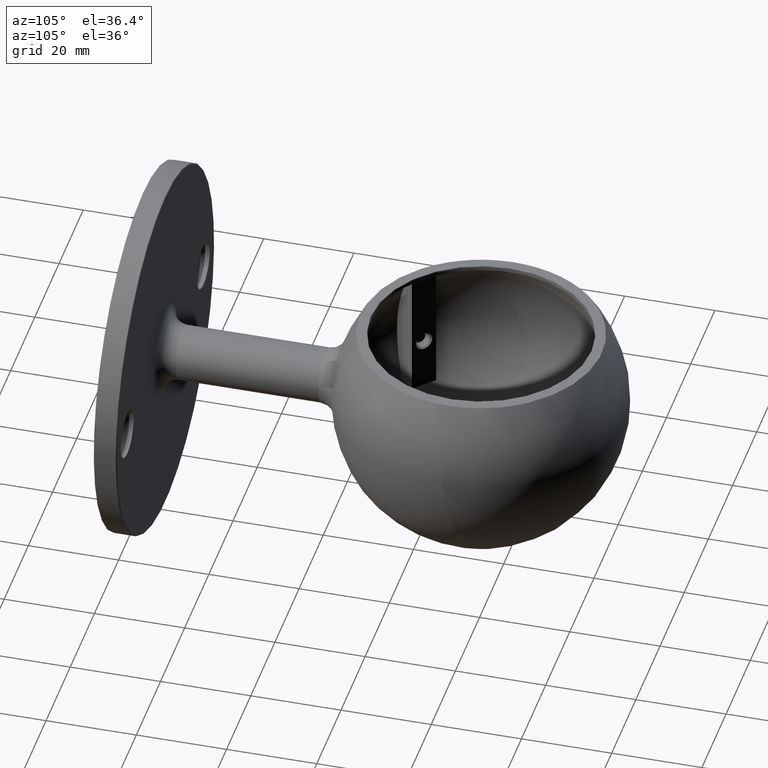
[diagram: clean part render]
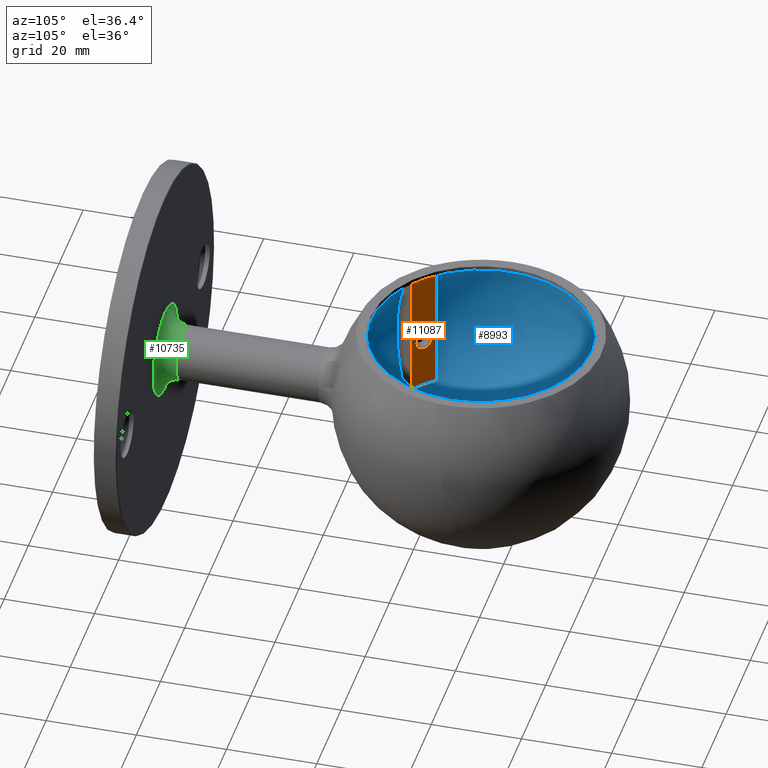
[diagram: same view with three faces highlighted in distinct colors, each labeled with its STEP entity id]
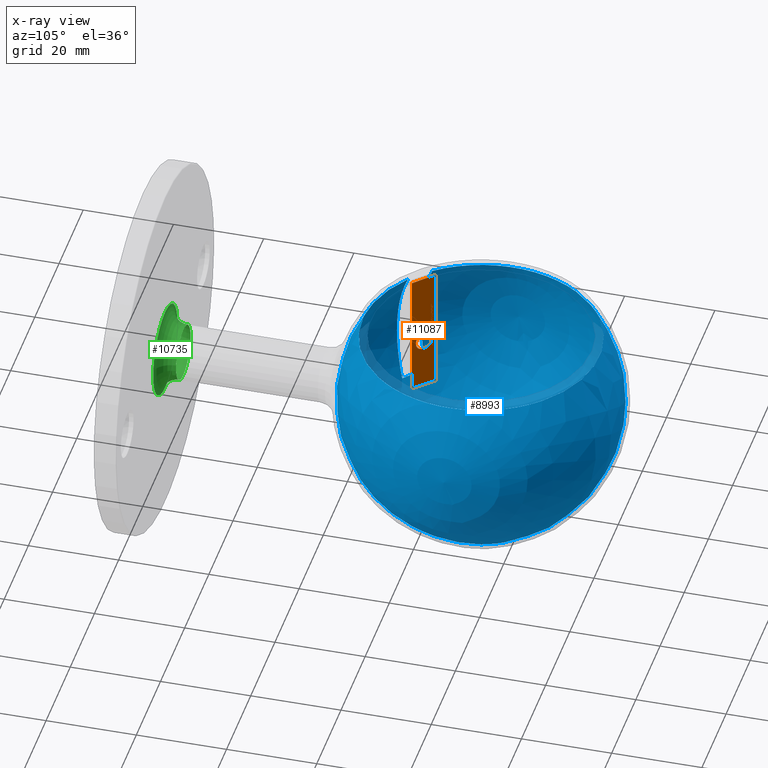
[diagram: x-ray of the same camera — body ghosted, the three highlighted faces saturated]
A machine part, auxiliary view with three faces highlighted in distinct colors.
The next image is the same camera in x-ray (body ghosted, the three faces saturated) — at least one of them is partly hidden behind the body in this view.
Their STEP definitions:

[orange] entity #11087 — the highlighted planar face has unit normal (-0.7071, -0.7071, -0).
#712 = EDGE_CURVE ( 'NONE', #2179, #3626, #1391, .T. ) ;
#848 = DIRECTION ( 'NONE',  ( -1.239088197126291063E-16, 0.000000000000000000, 1.000000000000000000 ) ) ;
#1391 = LINE ( 'NONE', #6797, #6065 ) ;
#1735 = AXIS2_PLACEMENT_3D ( 'NONE', #10358, #9427, #4431 ) ;
#1821 = PLANE ( 'NONE',  #1735 ) ;
#2044 = ORIENTED_EDGE ( 'NONE', *, *, #10249, .F. ) ;
#2179 = VERTEX_POINT ( 'NONE', #5832 ) ;
#2215 = EDGE_CURVE ( 'NONE', #8482, #6503, #10177, .T. ) ;
#2469 = DIRECTION ( 'NONE',  ( -0.7071067811865510144, 0.7071067811865441310, 0.000000000000000000 ) ) ;
#2557 = EDGE_CURVE ( 'NONE', #3626, #8482, #7273, .T. ) ;
#2703 = ORIENTED_EDGE ( 'NONE', *, *, #2557, .F. ) ;
#2710 = DIRECTION ( 'NONE',  ( 1.239088197126291063E-16, -2.478176394252582127E-16, -1.000000000000000000 ) ) ;
#3419 = CARTESIAN_POINT ( 'NONE',  ( -15.16744045645133809, 55.58991885642918618, -11.49999999999999645 ) ) ;
#3626 = VERTEX_POINT ( 'NONE', #6982 ) ;
#3820 = VECTOR ( 'NONE', #848, 1000.000000000000000 ) ;
#3971 = VERTEX_POINT ( 'NONE', #6684 ) ;
#4164 = CARTESIAN_POINT ( 'NONE',  ( -19.41008114357064684, 59.83255954354844874, 16.50000000000000000 ) ) ;
#4254 = EDGE_LOOP ( 'NONE', ( #4566, #6044, #2703, #6033, #5655 ) ) ;
#4431 = DIRECTION ( 'NONE',  ( 0.7071067811865517916, -0.7071067811865433539, 0.000000000000000000 ) ) ;
#4450 = DIRECTION ( 'NONE',  ( 0.7071067811865517916, -0.7071067811865433539, 0.000000000000000000 ) ) ;
#4554 = EDGE_LOOP ( 'NONE', ( #2044 ) ) ;
#4566 = ORIENTED_EDGE ( 'NONE', *, *, #7978, .F. ) ;
#4645 = LINE ( 'NONE', #3419, #3820 ) ;
#4680 = LINE ( 'NONE', #9667, #10387 ) ;
#5123 = FACE_BOUND ( 'NONE', #4554, .T. ) ;
#5146 = DIRECTION ( 'NONE',  ( -0.7071067811865511255, 0.7071067811865440200, -0.000000000000000000 ) ) ;
#5248 = AXIS2_PLACEMENT_3D ( 'NONE', #10991, #5878, #2469 ) ;
#5655 = ORIENTED_EDGE ( 'NONE', *, *, #6129, .F. ) ;
#5784 = DIRECTION ( 'NONE',  ( -0.7071067811865511255, 0.7071067811865440200, -0.000000000000000000 ) ) ;
#5832 = CARTESIAN_POINT ( 'NONE',  ( -15.16744045645135586, 55.58991885642918618, 16.50000000000000000 ) ) ;
#5878 = DIRECTION ( 'NONE',  ( 0.7071067811865439090, 0.7071067811865511255, -0.000000000000000000 ) ) ;
#6033 = ORIENTED_EDGE ( 'NONE', *, *, #712, .F. ) ;
#6044 = ORIENTED_EDGE ( 'NONE', *, *, #2215, .F. ) ;
#6065 = VECTOR ( 'NONE', #5146, 999.9999999999998863 ) ;
#6129 = EDGE_CURVE ( 'NONE', #3971, #2179, #4645, .T. ) ;
#6308 = CIRCLE ( 'NONE', #5248, 2.024999999999999467 ) ;
#6503 = VERTEX_POINT ( 'NONE', #7283 ) ;
#6684 = CARTESIAN_POINT ( 'NONE',  ( -15.16744045645133809, 55.58991885642918618, -11.49999999999999645 ) ) ;
#6797 = CARTESIAN_POINT ( 'NONE',  ( -19.41008114357064684, 59.83255954354844874, 16.50000000000000000 ) ) ;
#6982 = CARTESIAN_POINT ( 'NONE',  ( -17.28876080001099425, 57.71123919998880325, 16.50000000000000000 ) ) ;
#7273 = LINE ( 'NONE', #4164, #8723 ) ;
#7283 = CARTESIAN_POINT ( 'NONE',  ( -19.41008114357064329, 59.83255954354844164, -11.49999999999999645 ) ) ;
#7943 = VERTEX_POINT ( 'NONE', #10395 ) ;
#7978 = EDGE_CURVE ( 'NONE', #6503, #3971, #4680, .T. ) ;
#8035 = CARTESIAN_POINT ( 'NONE',  ( -19.41008114357065040, 59.83255954354842743, 16.50000000000000000 ) ) ;
#8221 = FACE_OUTER_BOUND ( 'NONE', #4254, .T. ) ;
#8482 = VERTEX_POINT ( 'NONE', #8035 ) ;
#8723 = VECTOR ( 'NONE', #5784, 999.9999999999998863 ) ;
#9427 = DIRECTION ( 'NONE',  ( -0.7071067811865433539, -0.7071067811865517916, -8.761676666762088980E-17 ) ) ;
#9542 = CARTESIAN_POINT ( 'NONE',  ( -19.41008114357064329, 59.83255954354844164, -11.49999999999999645 ) ) ;
#9667 = CARTESIAN_POINT ( 'NONE',  ( -19.41008114357064329, 59.83255954354844164, -11.49999999999999645 ) ) ;
#10177 = LINE ( 'NONE', #9542, #10444 ) ;
#10249 = EDGE_CURVE ( 'NONE', #7943, #7943, #6308, .T. ) ;
#10358 = CARTESIAN_POINT ( 'NONE',  ( 20.21123919998901997, 20.21123919998926155, 2.504350794200261900E-15 ) ) ;
#10387 = VECTOR ( 'NONE', #4450, 1000.000000000000000 ) ;
#10395 = CARTESIAN_POINT ( 'NONE',  ( -18.72065203191371907, 59.14313043189160624, 5.007417855406813218E-30 ) ) ;
#10444 = VECTOR ( 'NONE', #2710, 1000.000000000000000 ) ;
#10991 = CARTESIAN_POINT ( 'NONE',  ( -17.28876080001095517, 57.71123919998885299, 5.007417855406813218E-30 ) ) ;
#11087 = ADVANCED_FACE ( 'NONE', ( #5123, #8221 ), #1821, .F. ) ;

[blue] entity #8993 — the highlighted spherical surface has radius 31 mm.
#174 = DIRECTION ( 'NONE',  ( -0.000000000000000000, 0.000000000000000000, 1.000000000000000000 ) ) ;
#861 = CIRCLE ( 'NONE', #10084, 26.24404694402142368 ) ;
#1397 = FACE_OUTER_BOUND ( 'NONE', #9808, .T. ) ;
#1413 = AXIS2_PLACEMENT_3D ( 'NONE', #9925, #9962, #6526 ) ;
#1640 = CIRCLE ( 'NONE', #10836, 28.78801834096957535 ) ;
#1935 = DIRECTION ( 'NONE',  ( 0.7071067811865435759, 0.7071067811865515695, 0.000000000000000000 ) ) ;
#1950 = VERTEX_POINT ( 'NONE', #7448 ) ;
#2116 = VERTEX_POINT ( 'NONE', #5983 ) ;
#2798 = DIRECTION ( 'NONE',  ( 0.7071067811865513475, -0.7071067811865437980, 2.628503000028637294E-16 ) ) ;
#3011 = EDGE_CURVE ( 'NONE', #2116, #1950, #4474, .T. ) ;
#3171 = EDGE_CURVE ( 'NONE', #6909, #2116, #1640, .T. ) ;
#3590 = CARTESIAN_POINT ( 'NONE',  ( 0.000000000000000000, 75.00000000000000000, -11.49999999999999645 ) ) ;
#4202 = EDGE_CURVE ( 'NONE', #9044, #6909, #4577, .T. ) ;
#4474 = CIRCLE ( 'NONE', #1413, 30.85449724107887448 ) ;
#4577 = CIRCLE ( 'NONE', #6759, 30.85449724107887803 ) ;
#4923 = CARTESIAN_POINT ( 'NONE',  ( 0.000000000000000000, 75.00000000000000000, 16.50000000000000355 ) ) ;
#5983 = CARTESIAN_POINT ( 'NONE',  ( -18.12404949743470084, 52.63330981538534559, -11.49999999999999645 ) ) ;
#6153 = CARTESIAN_POINT ( 'NONE',  ( 0.000000000000000000, 75.00000000000000000, 0.000000000000000000 ) ) ;
#6392 = CARTESIAN_POINT ( 'NONE',  ( -2.121320343589882196, 77.12132034358985777, -7.885509000198277231E-16 ) ) ;
#6526 = DIRECTION ( 'NONE',  ( -0.7071067811865436870, -0.7071067811865514585, 0.000000000000000000 ) ) ;
#6566 = CARTESIAN_POINT ( 'NONE',  ( -22.36669018461445546, 56.87595050256506823, -11.49999999999999289 ) ) ;
#6691 = ORIENTED_EDGE ( 'NONE', *, *, #8598, .T. ) ;
#6759 = AXIS2_PLACEMENT_3D ( 'NONE', #6392, #2798, #1935 ) ;
#6909 = VERTEX_POINT ( 'NONE', #6566 ) ;
#7448 = CARTESIAN_POINT ( 'NONE',  ( -16.31437872099316877, 54.44298059182689542, 16.50000000000000355 ) ) ;
#7798 = ORIENTED_EDGE ( 'NONE', *, *, #3011, .T. ) ;
#7803 = SPHERICAL_SURFACE ( 'NONE', #10011, 31.00000000000000711 ) ;
#8303 = DIRECTION ( 'NONE',  ( 1.000000000000000000, 0.000000000000000000, 0.000000000000000000 ) ) ;
#8598 = EDGE_CURVE ( 'NONE', #1950, #9044, #861, .T. ) ;
#8704 = CARTESIAN_POINT ( 'NONE',  ( -20.55701940817293405, 58.68562127900661807, 16.50000000000000355 ) ) ;
#8993 = ADVANCED_FACE ( 'NONE', ( #1397 ), #7803, .F. ) ;
#9044 = VERTEX_POINT ( 'NONE', #8704 ) ;
#9067 = DIRECTION ( 'NONE',  ( -0.000000000000000000, -0.000000000000000000, 1.000000000000000000 ) ) ;
#9605 = DIRECTION ( 'NONE',  ( 1.000000000000000000, 0.000000000000000000, 0.000000000000000000 ) ) ;
#9808 = EDGE_LOOP ( 'NONE', ( #7798, #6691, #10752, #9906 ) ) ;
#9906 = ORIENTED_EDGE ( 'NONE', *, *, #3171, .T. ) ;
#9925 = CARTESIAN_POINT ( 'NONE',  ( 2.121320343589879087, 72.87867965641014223, 2.628503000066107694E-16 ) ) ;
#9962 = DIRECTION ( 'NONE',  ( -0.7071067811865513475, 0.7071067811865437980, -8.761676666762187588E-17 ) ) ;
#10011 = AXIS2_PLACEMENT_3D ( 'NONE', #6153, #10228, #10343 ) ;
#10084 = AXIS2_PLACEMENT_3D ( 'NONE', #4923, #9067, #8303 ) ;
#10228 = DIRECTION ( 'NONE',  ( -1.000000000000000000, 0.000000000000000000, 0.000000000000000000 ) ) ;
#10343 = DIRECTION ( 'NONE',  ( 0.000000000000000000, 1.000000000000000000, 0.000000000000000000 ) ) ;
#10752 = ORIENTED_EDGE ( 'NONE', *, *, #4202, .T. ) ;
#10836 = AXIS2_PLACEMENT_3D ( 'NONE', #3590, #174, #9605 ) ;

[green] entity #10735 — the highlighted toroidal blend (fillet) surface has major radius 10 mm and minor (blend) radius 4 mm.
#40 = EDGE_CURVE ( 'NONE', #9564, #9564, #7272, .T. ) ;
#214 = CARTESIAN_POINT ( 'NONE',  ( 0.000000000000000000, 5.000000000000000000, 10.00000000000000178 ) ) ;
#255 = TOROIDAL_SURFACE ( 'NONE', #6555, 10.00000000000000178, 4.000000000000000000 ) ;
#827 = AXIS2_PLACEMENT_3D ( 'NONE', #7416, #8367, #1402 ) ;
#903 = DIRECTION ( 'NONE',  ( 0.000000000000000000, 0.000000000000000000, 1.000000000000000000 ) ) ;
#1148 = VERTEX_POINT ( 'NONE', #214 ) ;
#1402 = DIRECTION ( 'NONE',  ( 0.000000000000000000, 0.000000000000000000, 1.000000000000000000 ) ) ;
#1933 = DIRECTION ( 'NONE',  ( 0.000000000000000000, 0.000000000000000000, 1.000000000000000000 ) ) ;
#3527 = CIRCLE ( 'NONE', #10159, 10.00000000000000178 ) ;
#4021 = FACE_OUTER_BOUND ( 'NONE', #7122, .T. ) ;
#4394 = CARTESIAN_POINT ( 'NONE',  ( 0.000000000000000000, 8.999999999999994671, 0.000000000000000000 ) ) ;
#5266 = DIRECTION ( 'NONE',  ( 0.000000000000000000, 1.000000000000000000, 0.000000000000000000 ) ) ;
#5269 = CARTESIAN_POINT ( 'NONE',  ( 0.000000000000000000, 8.999999999999994671, 6.000000000000000888 ) ) ;
#6217 = CARTESIAN_POINT ( 'NONE',  ( 0.000000000000000000, 5.000000000000000000, 0.000000000000000000 ) ) ;
#6258 = ORIENTED_EDGE ( 'NONE', *, *, #40, .F. ) ;
#6554 = FACE_OUTER_BOUND ( 'NONE', #8386, .T. ) ;
#6555 = AXIS2_PLACEMENT_3D ( 'NONE', #4394, #5266, #903 ) ;
#7066 = DIRECTION ( 'NONE',  ( -0.000000000000000000, -1.000000000000000000, -0.000000000000000000 ) ) ;
#7122 = EDGE_LOOP ( 'NONE', ( #6258 ) ) ;
#7272 = CIRCLE ( 'NONE', #827, 6.000000000000000888 ) ;
#7416 = CARTESIAN_POINT ( 'NONE',  ( 0.000000000000000000, 8.999999999999994671, 0.000000000000000000 ) ) ;
#8367 = DIRECTION ( 'NONE',  ( 0.000000000000000000, 1.000000000000000000, 0.000000000000000000 ) ) ;
#8386 = EDGE_LOOP ( 'NONE', ( #9118 ) ) ;
#9118 = ORIENTED_EDGE ( 'NONE', *, *, #9743, .F. ) ;
#9564 = VERTEX_POINT ( 'NONE', #5269 ) ;
#9743 = EDGE_CURVE ( 'NONE', #1148, #1148, #3527, .T. ) ;
#10159 = AXIS2_PLACEMENT_3D ( 'NONE', #6217, #7066, #1933 ) ;
#10735 = ADVANCED_FACE ( 'NONE', ( #6554, #4021 ), #255, .F. ) ;